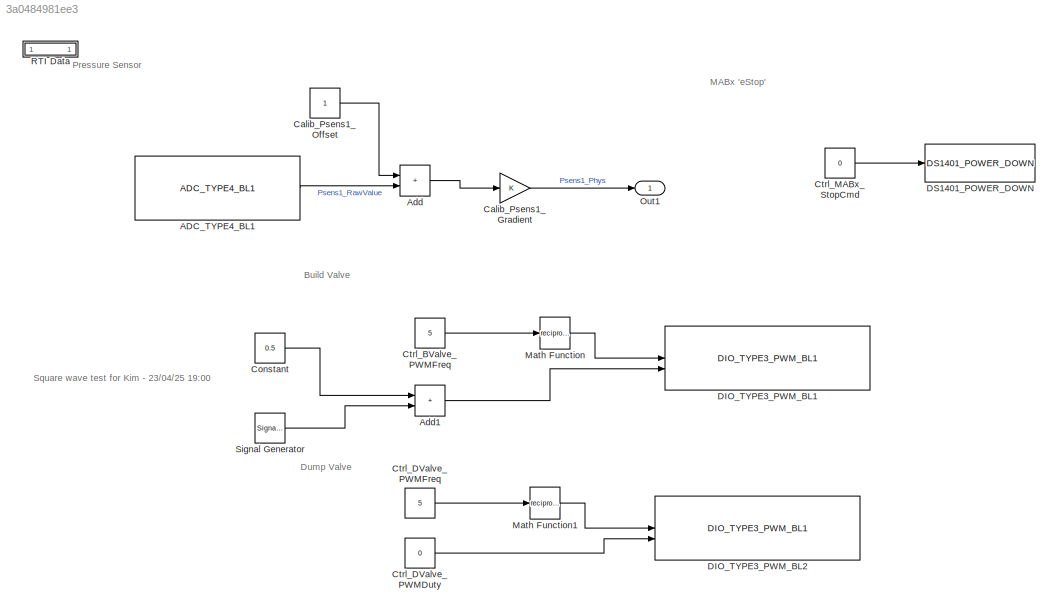
MODEL slx_3a0484981ee3
KIND model
CONFIG AbsTol = auto
CONFIG EnableMultiTasking = off
CONFIG FixedStep = 0.001
CONFIG InitFcn = , if any(exist('rtifpga_mdlclblib', 'file') ~= 0), rtifpga_mdlclblib('Init', bdroot); end,\n
CONFIG MaxStep = auto
CONFIG MinStep = auto
CONFIG PostLoadFcn = , if any(exist('dsrtsu_mdlpostloadfcn', 'file') ~= 0), dsrtsu_mdlpostloadfcn('Execute', bdroot); end, \n
CONFIG RelTol = 1e-3
CONFIG SampleTimeConstraint = Unconstrained
CONFIG SolverName = ode1
CONFIG StartTime = 0.0
CONFIG StopTime = Inf
BLOCK [Reference] ADC_TYPE4_BL1  REF=rti1401lib_adc_type4/ADC_TYPE4_BL1
  SourceBlock = rti1401lib_adc_type4/ADC_TYPE4_BL1
  SourceType = RTI
BLOCK [Sum] Add
  IconShape = rectangular
BLOCK [Sum] Add1
  IconShape = rectangular
BLOCK [Gain] Calib_Psens1_Gradient
BLOCK [Constant] Calib_Psens1_Offset
BLOCK [Constant] Constant
  Value = 0.5
BLOCK [Constant] Ctrl_BValve_PWMFreq
  Value = 5
BLOCK [Constant] Ctrl_DValve_PWMDuty
  Value = 0
BLOCK [Constant] Ctrl_DValve_PWMFreq
  Value = 5
BLOCK [Constant] Ctrl_MABx_StopCmd
  Value = 0
BLOCK [Reference] DIO_TYPE3_PWM_BL1  REF=rti1401lib_dio_type3/DIO_TYPE3_PWM_BL1
  SourceBlock = rti1401lib_dio_type3/DIO_TYPE3_PWM_BL1
  SourceType = RTI
BLOCK [Reference] DIO_TYPE3_PWM_BL2  REF=rti1401lib_dio_type3/DIO_TYPE3_PWM_BL1
  SourceBlock = rti1401lib_dio_type3/DIO_TYPE3_PWM_BL1
  SourceType = RTI
BLOCK [Reference] DS1401_POWER_DOWN  REF=rti1401lib_II_base/DS1401_POWER_DOWN
  SourceBlock = rti1401lib_II_base/DS1401_POWER_DOWN
  SourceType = RTI
BLOCK [Math] Math Function
  Operator = reciprocal
BLOCK [Math] Math Function1
  Operator = reciprocal
BLOCK [Outport] Out1
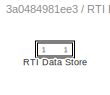
BLOCK [SubSystem] RTI Data
  CopyFcn = if exist('rtidc'), try,  rtidc('DataHostBlockClbCopy', gcbh); catch, disp(['Warning: ''CopyFcn'' for RTI Data block failed: ' lasterr]); end, end,
  DeleteFcn = if exist('rtidc'), try,  rtidc('DataHostBlockClbDelete', gcbh); catch, disp(['Warning: ''DeleteFcn'' for RTI Data block failed: ' lasterr]); end, end,
  LoadFcn = if exist('rtidc'), try,  rtidc('DataHostBlockClbLoad', gcbh); catch, disp(['Warning: ''LoadFcn'' for RTI Data block failed: ' lasterr]); end, end,
  ModelCloseFcn = if exist('rtidc'), try,  rtidc('DataHostBlockClbModelClose', gcbh); catch, disp(['Warning: ''ModelCloseFcn'' for RTI Data block failed: ' lasterr]); end, end,
  NameChangeFcn = if exist('rtidc'), try,  rtidc('DataHostBlockClbNameChange', gcbh); catch, disp(['Warning: ''NameChangeFcn'' for RTI Data block failed: ' lasterr]); end, end,
  PostSaveFcn = if exist('rtidc'), try,  rtidc('DataHostBlockClbPostSave', gcbh); catch, disp(['Warning: ''PostSaveFcn'' for RTI Data block failed: ' lasterr]); end, end,
  PreSaveFcn = if exist('rtidc'), try,  rtidc('DataHostBlockClbPreSave', gcbh); catch, disp(['Warning: ''PreSaveFcn'' for RTI Data block failed: ' lasterr]); end, end,
  Tag = struct('RTIDataServer',struct('RTIDataServerVs','2','RTIModelDescription','struct(''main'',''test00_mdl'',''sub'','''',''isMp'',0)'))
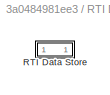
BLOCK [SubSystem] RTI Data/RTI Data Store
  Tag = struct('public',struct('sub',struct('name',{{'test00_mdl'}},'data',{{struct('TH',struct('thTaskInfo',struct('taskType',{'TIMER','HWINT','TMRINT','SWINT','GLINT'},'tasksNumOf',{1,0,0,0,0},'srcIds',{{'TIMERA'},{},{},{},{}},'taskNames',{{['Timer Task 1']},{},{},{},{}})),'th_tc',struct('dataType','TASK','taskGroupId','','taskGroupList',{{}},'taskSchedulingPolicy','FCFS','taskType','TIMER','blkh',-1,'s...<+708ch>
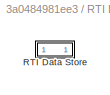
BLOCK [SubSystem] RTI Data/RTI Data Store/RTI Data Store
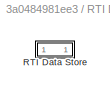
BLOCK [SubSystem] RTI Data/RTI Data Store/RTI Data Store/RTI Data Store
BLOCK [SubSystem] RTI Data/RTI Data Store/RTI Data Store/RTI Data Store/RTI Data Store
BLOCK [SignalGenerator] Signal Generator
  Amplitude = 0.5
  Units = rad/sec
  WaveForm = square
ANNOTATION (root): Build Valve
ANNOTATION (root): Dump Valve
ANNOTATION (root): MABx 'eStop'
ANNOTATION (root): Pressure Sensor
ANNOTATION (root): Square wave test for Kim - 23/04/25 19:00
LINE ADC_TYPE4_BL1:1 -> Add:2
LINE Add1:1 -> DIO_TYPE3_PWM_BL1:2
LINE Add:1 -> Calib_Psens1_Gradient:1
LINE Calib_Psens1_Gradient:1 -> Out1:1
LINE Calib_Psens1_Offset:1 -> Add:1
LINE Constant:1 -> Add1:1
LINE Ctrl_BValve_PWMFreq:1 -> Math Function:1
LINE Ctrl_DValve_PWMDuty:1 -> DIO_TYPE3_PWM_BL2:2
LINE Ctrl_DValve_PWMFreq:1 -> Math Function1:1
LINE Ctrl_MABx_StopCmd:1 -> DS1401_POWER_DOWN:1
LINE Math Function1:1 -> DIO_TYPE3_PWM_BL2:1
LINE Math Function:1 -> DIO_TYPE3_PWM_BL1:1
LINE Signal Generator:1 -> Add1:2
